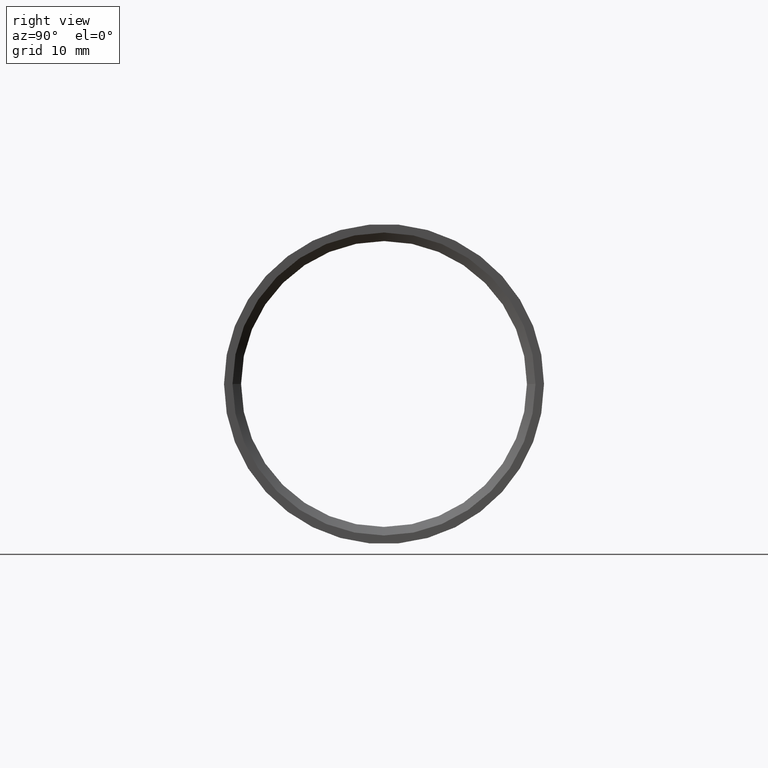
[diagram: clean part render]
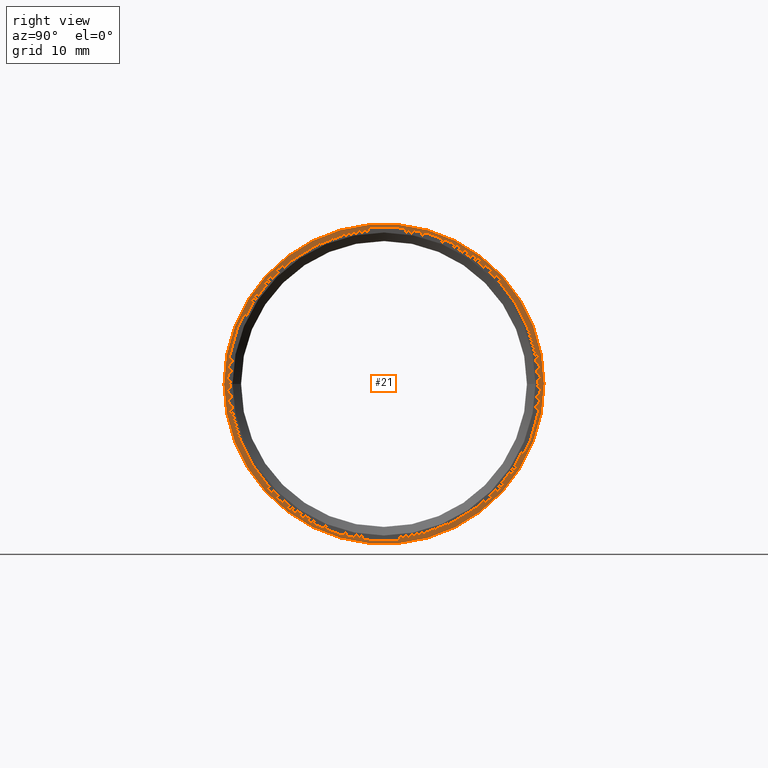
[diagram: same view with one face highlighted and labeled with its STEP entity id]
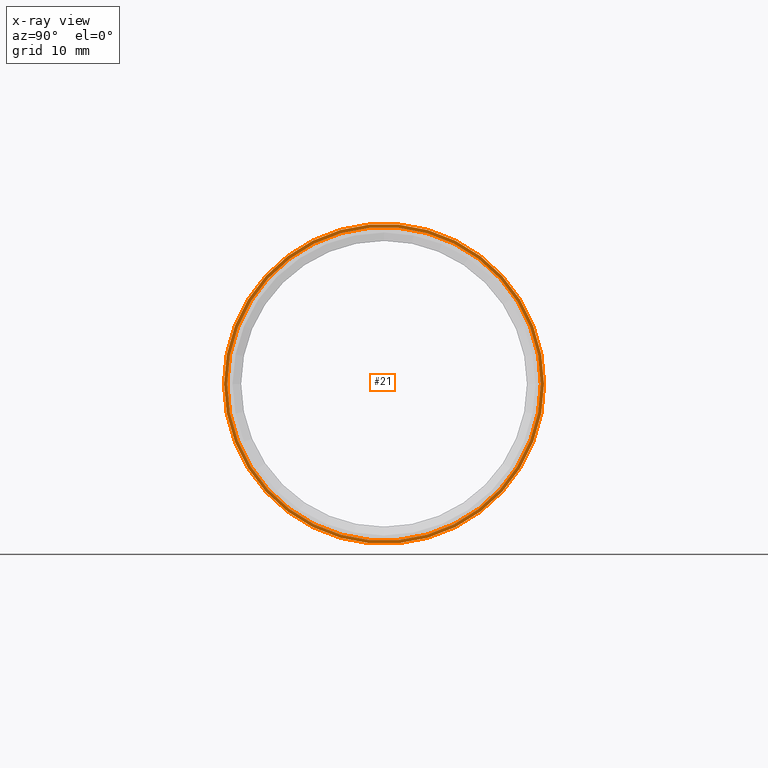
[diagram: x-ray of the same camera — body ghosted, the highlighted face saturated]
A machine part, right view. The second image highlights one B-rep face of the part: STEP entity #21.
The next image is the same camera in x-ray: the body ghosted, the highlighted face saturated — about 0% of this face is hidden behind the body in this view.
In plain terms, the highlighted planar face has unit normal (1, 0, -0).
Its self-contained STEP definition (entity closure, byte-faithful):
#8 = AXIS2_PLACEMENT_3D ( 'NONE', #470, #94, #409 ) ;
#11 = FACE_OUTER_BOUND ( 'NONE', #535, .T. ) ;
#16 = DIRECTION ( 'NONE',  ( 0.0000000000000000000, 0.0000000000000000000, -1.000000000000000000 ) ) ;
#21 = ADVANCED_FACE ( 'NONE', ( #22, #11 ), #686, .T. ) ;
#22 = FACE_BOUND ( 'NONE', #448, .T. ) ;
#24 = DIRECTION ( 'NONE',  ( 1.000000000000000000, 1.139601642983670200E-016, -0.0000000000000000000 ) ) ;
#46 = DIRECTION ( 'NONE',  ( 0.0000000000000000000, 0.0000000000000000000, -1.000000000000000000 ) ) ;
#71 = EDGE_CURVE ( 'NONE', #451, #486, #124, .T. ) ;
#94 = DIRECTION ( 'NONE',  ( 1.000000000000000000, 1.139601642983670200E-016, -0.0000000000000000000 ) ) ;
#103 = CARTESIAN_POINT ( 'NONE',  ( -1.309543155211255600E-017, 0.7500000000000001100, 0.0000000000000000000 ) ) ;
#107 = ORIENTED_EDGE ( 'NONE', *, *, #193, .F. ) ;
#110 = AXIS2_PLACEMENT_3D ( 'NONE', #393, #24, #339 ) ;
#124 = CIRCLE ( 'NONE', #8, 0.7500000000000001100 ) ;
#152 = CARTESIAN_POINT ( 'NONE',  ( 0.0000000000000000000, 0.7500000000000001100, 0.0000000000000000000 ) ) ;
#159 = DIRECTION ( 'NONE',  ( 1.000000000000000000, 1.139601642983670200E-016, 0.0000000000000000000 ) ) ;
#173 = CARTESIAN_POINT ( 'NONE',  ( 2.000732498201575200E-050, -1.755641991672913400E-034, 0.0000000000000000000 ) ) ;
#193 = EDGE_CURVE ( 'NONE', #398, #563, #201, .T. ) ;
#201 = CIRCLE ( 'NONE', #296, 0.7350000000004026600 ) ;
#267 = DIRECTION ( 'NONE',  ( -1.139601642983670200E-016, 1.000000000000000000, 0.0000000000000000000 ) ) ;
#291 = CARTESIAN_POINT ( 'NONE',  ( 1.709402464475505200E-016, -0.7500000000000001100, 9.184850993605150900E-017 ) ) ;
#296 = AXIS2_PLACEMENT_3D ( 'NONE', #173, #589, #16 ) ;
#339 = DIRECTION ( 'NONE',  ( -1.139601642983670000E-016, 1.000000000000000000, 0.0000000000000000000 ) ) ;
#393 = CARTESIAN_POINT ( 'NONE',  ( 8.547012322377526000E-017, 9.740189285183104400E-033, 0.0000000000000000000 ) ) ;
#398 = VERTEX_POINT ( 'NONE', #613 ) ;
#400 = ORIENTED_EDGE ( 'NONE', *, *, #406, .T. ) ;
#406 = EDGE_CURVE ( 'NONE', #486, #451, #532, .T. ) ;
#409 = DIRECTION ( 'NONE',  ( -1.139601642983670000E-016, 1.000000000000000000, 0.0000000000000000000 ) ) ;
#424 = CARTESIAN_POINT ( 'NONE',  ( -8.376072075934564800E-017, 0.7350000000004026600, 0.0000000000000000000 ) ) ;
#448 = EDGE_LOOP ( 'NONE', ( #585, #107 ) ) ;
#451 = VERTEX_POINT ( 'NONE', #291 ) ;
#452 = CIRCLE ( 'NONE', #576, 0.7350000000004026600 ) ;
#470 = CARTESIAN_POINT ( 'NONE',  ( 8.547012322377526000E-017, 9.740189285183104400E-033, 0.0000000000000000000 ) ) ;
#471 = CARTESIAN_POINT ( 'NONE',  ( 2.000732498201575200E-050, -1.755641991672913400E-034, 0.0000000000000000000 ) ) ;
#486 = VERTEX_POINT ( 'NONE', #152 ) ;
#494 = ORIENTED_EDGE ( 'NONE', *, *, #71, .T. ) ;
#522 = AXIS2_PLACEMENT_3D ( 'NONE', #103, #633, #267 ) ;
#532 = CIRCLE ( 'NONE', #110, 0.7500000000000001100 ) ;
#535 = EDGE_LOOP ( 'NONE', ( #400, #494 ) ) ;
#563 = VERTEX_POINT ( 'NONE', #424 ) ;
#576 = AXIS2_PLACEMENT_3D ( 'NONE', #471, #159, #46 ) ;
#585 = ORIENTED_EDGE ( 'NONE', *, *, #652, .F. ) ;
#589 = DIRECTION ( 'NONE',  ( 1.000000000000000000, 1.139601642983670200E-016, 0.0000000000000000000 ) ) ;
#613 = CARTESIAN_POINT ( 'NONE',  ( 8.376072075934564800E-017, -0.7350000000004026600, 9.001153973737977500E-017 ) ) ;
#633 = DIRECTION ( 'NONE',  ( 1.000000000000000000, 1.139601642983670200E-016, -0.0000000000000000000 ) ) ;
#652 = EDGE_CURVE ( 'NONE', #563, #398, #452, .T. ) ;
#686 = PLANE ( 'NONE',  #522 ) ;